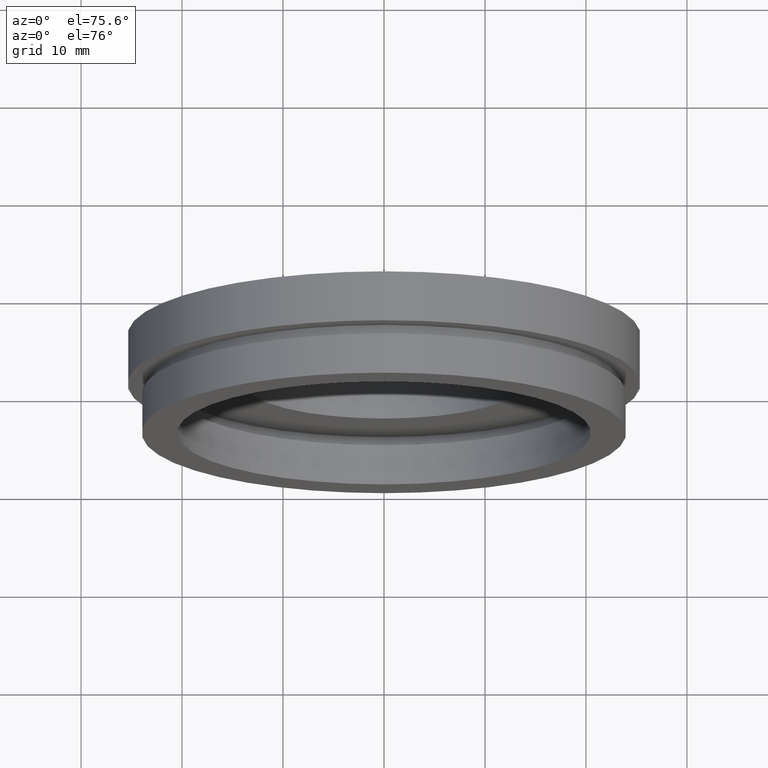
[diagram: clean part render]
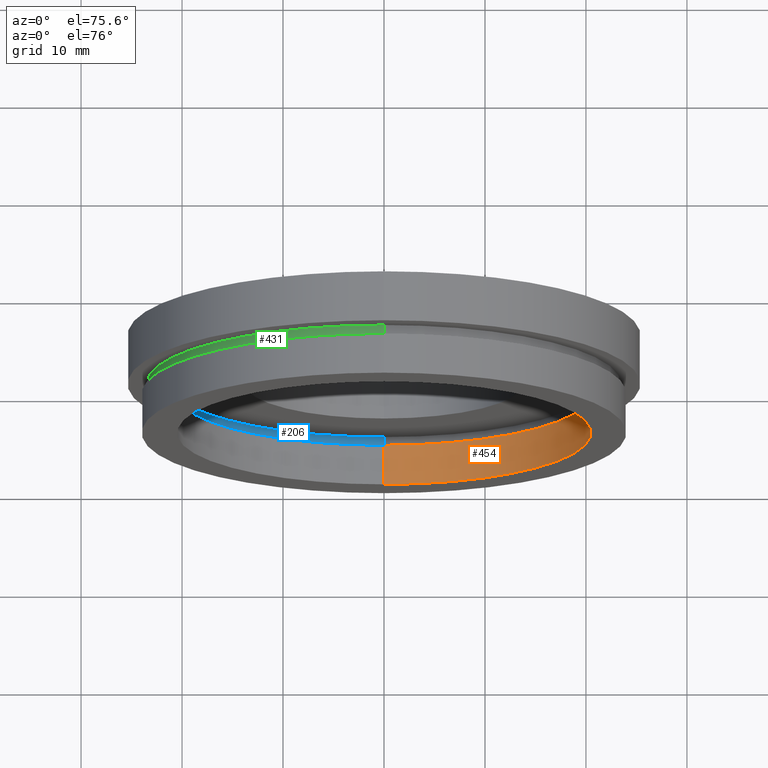
[diagram: same view with three faces highlighted in distinct colors, each labeled with its STEP entity id]
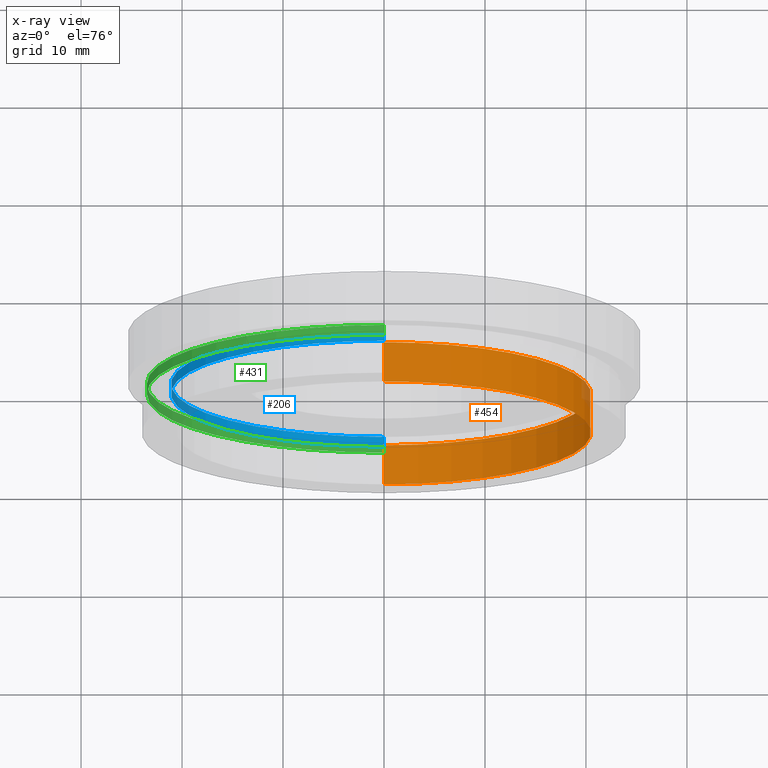
[diagram: x-ray of the same camera — body ghosted, the three highlighted faces saturated]
A machine part, auxiliary view with three faces highlighted in distinct colors.
The next image is the same camera in x-ray (body ghosted, the three faces saturated) — at least one of them is partly hidden behind the body in this view.
Their STEP definitions:

[orange] entity #454 — the highlighted cylindrical surface (partial cylindrical patch) has radius 20.5 mm, axis along (-0, 1, -0).
#9 = DIRECTION ( 'NONE',  ( -0.0000000000000000000, 1.000000000000000000, -0.0000000000000000000 ) ) ;
#10 = CARTESIAN_POINT ( 'NONE',  ( 2.510525938252074500E-015, 17.41929831819392000, -20.50000000000000400 ) ) ;
#16 = VERTEX_POINT ( 'NONE', #251 ) ;
#25 = VERTEX_POINT ( 'NONE', #339 ) ;
#51 = DIRECTION ( 'NONE',  ( -0.0000000000000000000, 1.000000000000000000, -0.0000000000000000000 ) ) ;
#68 = VERTEX_POINT ( 'NONE', #102 ) ;
#93 = CARTESIAN_POINT ( 'NONE',  ( 0.0000000000000000000, 17.41929831819392000, 0.0000000000000000000 ) ) ;
#102 = CARTESIAN_POINT ( 'NONE',  ( 2.510525938252074500E-015, 0.0000000000000000000, -20.50000000000000000 ) ) ;
#105 = ORIENTED_EDGE ( 'NONE', *, *, #451, .T. ) ;
#126 = ORIENTED_EDGE ( 'NONE', *, *, #146, .F. ) ;
#130 = DIRECTION ( 'NONE',  ( 0.0000000000000000000, 0.0000000000000000000, 1.000000000000000000 ) ) ;
#146 = EDGE_CURVE ( 'NONE', #16, #68, #553, .T. ) ;
#161 = FACE_OUTER_BOUND ( 'NONE', #287, .T. ) ;
#178 = CARTESIAN_POINT ( 'NONE',  ( 0.0000000000000000000, 0.0000000000000000000, 0.0000000000000000000 ) ) ;
#185 = ORIENTED_EDGE ( 'NONE', *, *, #383, .T. ) ;
#197 = DIRECTION ( 'NONE',  ( 0.0000000000000000000, 0.0000000000000000000, 1.000000000000000000 ) ) ;
#202 = DIRECTION ( 'NONE',  ( 0.0000000000000000000, 0.0000000000000000000, 1.000000000000000000 ) ) ;
#210 = AXIS2_PLACEMENT_3D ( 'NONE', #400, #528, #202 ) ;
#242 = CIRCLE ( 'NONE', #210, 20.50000000000000400 ) ;
#251 = CARTESIAN_POINT ( 'NONE',  ( 0.0000000000000000000, 0.0000000000000000000, 20.50000000000000000 ) ) ;
#255 = ORIENTED_EDGE ( 'NONE', *, *, #604, .F. ) ;
#287 = EDGE_LOOP ( 'NONE', ( #255, #126, #105, #185 ) ) ;
#302 = CYLINDRICAL_SURFACE ( 'NONE', #554, 20.50000000000000400 ) ;
#307 = LINE ( 'NONE', #10, #462 ) ;
#339 = CARTESIAN_POINT ( 'NONE',  ( 0.0000000000000000000, 4.000000000000000000, 20.50000000000000400 ) ) ;
#383 = EDGE_CURVE ( 'NONE', #25, #489, #242, .T. ) ;
#395 = AXIS2_PLACEMENT_3D ( 'NONE', #178, #475, #197 ) ;
#400 = CARTESIAN_POINT ( 'NONE',  ( 0.0000000000000000000, 4.000000000000000000, 0.0000000000000000000 ) ) ;
#409 = CARTESIAN_POINT ( 'NONE',  ( 0.0000000000000000000, 17.41929831819392000, 20.50000000000000400 ) ) ;
#451 = EDGE_CURVE ( 'NONE', #16, #25, #456, .T. ) ;
#454 = ADVANCED_FACE ( 'NONE', ( #161 ), #302, .F. ) ;
#456 = LINE ( 'NONE', #409, #609 ) ;
#462 = VECTOR ( 'NONE', #9, 1000.000000000000000 ) ;
#475 = DIRECTION ( 'NONE',  ( -0.0000000000000000000, 1.000000000000000000, -0.0000000000000000000 ) ) ;
#489 = VERTEX_POINT ( 'NONE', #603 ) ;
#509 = DIRECTION ( 'NONE',  ( -0.0000000000000000000, 1.000000000000000000, -0.0000000000000000000 ) ) ;
#528 = DIRECTION ( 'NONE',  ( -0.0000000000000000000, 1.000000000000000000, -0.0000000000000000000 ) ) ;
#553 = CIRCLE ( 'NONE', #395, 20.50000000000000000 ) ;
#554 = AXIS2_PLACEMENT_3D ( 'NONE', #93, #509, #130 ) ;
#603 = CARTESIAN_POINT ( 'NONE',  ( 2.510525938252074500E-015, 4.000000000000000000, -20.50000000000000400 ) ) ;
#604 = EDGE_CURVE ( 'NONE', #68, #489, #307, .T. ) ;
#609 = VECTOR ( 'NONE', #51, 1000.000000000000000 ) ;

[blue] entity #206 — the highlighted cylindrical surface (partial cylindrical patch) has radius 21.1 mm, axis along (-0, 1, -0).
#36 = DIRECTION ( 'NONE',  ( -0.0000000000000000000, 1.000000000000000000, -0.0000000000000000000 ) ) ;
#46 = DIRECTION ( 'NONE',  ( -0.0000000000000000000, 1.000000000000000000, -0.0000000000000000000 ) ) ;
#69 = DIRECTION ( 'NONE',  ( -0.0000000000000000000, 1.000000000000000000, -0.0000000000000000000 ) ) ;
#74 = VECTOR ( 'NONE', #137, 1000.000000000000000 ) ;
#98 = CIRCLE ( 'NONE', #564, 21.10000000000000100 ) ;
#113 = CYLINDRICAL_SURFACE ( 'NONE', #303, 21.10000000000000100 ) ;
#116 = CARTESIAN_POINT ( 'NONE',  ( 2.584004746200915400E-015, 5.000000000000000900, -21.10000000000000100 ) ) ;
#121 = CARTESIAN_POINT ( 'NONE',  ( 0.0000000000000000000, 17.41929831819392000, 0.0000000000000000000 ) ) ;
#136 = VERTEX_POINT ( 'NONE', #232 ) ;
#137 = DIRECTION ( 'NONE',  ( -0.0000000000000000000, 1.000000000000000000, -0.0000000000000000000 ) ) ;
#147 = CARTESIAN_POINT ( 'NONE',  ( 0.0000000000000000000, 5.000000000000000900, 21.10000000000000100 ) ) ;
#152 = AXIS2_PLACEMENT_3D ( 'NONE', #623, #46, #357 ) ;
#162 = ORIENTED_EDGE ( 'NONE', *, *, #299, .T. ) ;
#164 = ORIENTED_EDGE ( 'NONE', *, *, #276, .F. ) ;
#189 = VERTEX_POINT ( 'NONE', #116 ) ;
#206 = ADVANCED_FACE ( 'NONE', ( #308 ), #113, .F. ) ;
#211 = DIRECTION ( 'NONE',  ( -0.0000000000000000000, 1.000000000000000000, -0.0000000000000000000 ) ) ;
#232 = CARTESIAN_POINT ( 'NONE',  ( 0.0000000000000000000, 4.000000000000000000, 21.10000000000000100 ) ) ;
#250 = LINE ( 'NONE', #375, #74 ) ;
#276 = EDGE_CURVE ( 'NONE', #136, #397, #438, .T. ) ;
#299 = EDGE_CURVE ( 'NONE', #189, #397, #98, .T. ) ;
#301 = CIRCLE ( 'NONE', #152, 21.10000000000000100 ) ;
#303 = AXIS2_PLACEMENT_3D ( 'NONE', #121, #36, #332 ) ;
#308 = FACE_OUTER_BOUND ( 'NONE', #435, .T. ) ;
#326 = VERTEX_POINT ( 'NONE', #328 ) ;
#328 = CARTESIAN_POINT ( 'NONE',  ( 2.584004746200915400E-015, 4.000000000000000000, -21.10000000000000100 ) ) ;
#332 = DIRECTION ( 'NONE',  ( 0.0000000000000000000, 0.0000000000000000000, 1.000000000000000000 ) ) ;
#357 = DIRECTION ( 'NONE',  ( 0.0000000000000000000, 0.0000000000000000000, 1.000000000000000000 ) ) ;
#374 = EDGE_CURVE ( 'NONE', #326, #189, #250, .T. ) ;
#375 = CARTESIAN_POINT ( 'NONE',  ( 2.584004746200915400E-015, 17.41929831819392000, -21.10000000000000100 ) ) ;
#379 = ORIENTED_EDGE ( 'NONE', *, *, #374, .T. ) ;
#386 = ORIENTED_EDGE ( 'NONE', *, *, #622, .F. ) ;
#390 = CARTESIAN_POINT ( 'NONE',  ( 0.0000000000000000000, 17.41929831819392000, 21.10000000000000100 ) ) ;
#397 = VERTEX_POINT ( 'NONE', #147 ) ;
#435 = EDGE_LOOP ( 'NONE', ( #386, #379, #162, #164 ) ) ;
#438 = LINE ( 'NONE', #390, #538 ) ;
#521 = DIRECTION ( 'NONE',  ( 0.0000000000000000000, 0.0000000000000000000, 1.000000000000000000 ) ) ;
#538 = VECTOR ( 'NONE', #69, 1000.000000000000000 ) ;
#561 = CARTESIAN_POINT ( 'NONE',  ( 0.0000000000000000000, 5.000000000000000900, 0.0000000000000000000 ) ) ;
#564 = AXIS2_PLACEMENT_3D ( 'NONE', #561, #211, #521 ) ;
#622 = EDGE_CURVE ( 'NONE', #326, #136, #301, .T. ) ;
#623 = CARTESIAN_POINT ( 'NONE',  ( 0.0000000000000000000, 4.000000000000000000, 0.0000000000000000000 ) ) ;

[green] entity #431 — the highlighted cylindrical surface (partial cylindrical patch) has radius 23.5 mm, axis along (-0, 1, -0).
#18 = VERTEX_POINT ( 'NONE', #499 ) ;
#26 = ORIENTED_EDGE ( 'NONE', *, *, #216, .F. ) ;
#31 = VERTEX_POINT ( 'NONE', #531 ) ;
#32 = VERTEX_POINT ( 'NONE', #545 ) ;
#41 = VERTEX_POINT ( 'NONE', #405 ) ;
#44 = DIRECTION ( 'NONE',  ( -0.0000000000000000000, 1.000000000000000000, -0.0000000000000000000 ) ) ;
#60 = CARTESIAN_POINT ( 'NONE',  ( 0.0000000000000000000, 5.000000000000000900, 0.0000000000000000000 ) ) ;
#82 = ORIENTED_EDGE ( 'NONE', *, *, #510, .T. ) ;
#89 = LINE ( 'NONE', #298, #91 ) ;
#91 = VECTOR ( 'NONE', #44, 1000.000000000000000 ) ;
#132 = CYLINDRICAL_SURFACE ( 'NONE', #533, 23.50000000000000000 ) ;
#135 = VECTOR ( 'NONE', #330, 1000.000000000000000 ) ;
#138 = ORIENTED_EDGE ( 'NONE', *, *, #317, .T. ) ;
#150 = DIRECTION ( 'NONE',  ( -0.0000000000000000000, 1.000000000000000000, -0.0000000000000000000 ) ) ;
#198 = DIRECTION ( 'NONE',  ( 0.0000000000000000000, 0.0000000000000000000, 1.000000000000000000 ) ) ;
#214 = EDGE_LOOP ( 'NONE', ( #26, #82, #138, #589 ) ) ;
#216 = EDGE_CURVE ( 'NONE', #41, #32, #449, .T. ) ;
#222 = AXIS2_PLACEMENT_3D ( 'NONE', #60, #150, #363 ) ;
#230 = DIRECTION ( 'NONE',  ( -0.0000000000000000000, 1.000000000000000000, -0.0000000000000000000 ) ) ;
#234 = CIRCLE ( 'NONE', #345, 23.50000000000000000 ) ;
#254 = CIRCLE ( 'NONE', #222, 23.50000000000000000 ) ;
#298 = CARTESIAN_POINT ( 'NONE',  ( 0.0000000000000000000, 17.41929831819392000, 23.50000000000000000 ) ) ;
#317 = EDGE_CURVE ( 'NONE', #31, #18, #89, .T. ) ;
#330 = DIRECTION ( 'NONE',  ( -0.0000000000000000000, 1.000000000000000000, -0.0000000000000000000 ) ) ;
#341 = DIRECTION ( 'NONE',  ( -0.0000000000000000000, 1.000000000000000000, -0.0000000000000000000 ) ) ;
#345 = AXIS2_PLACEMENT_3D ( 'NONE', #472, #341, #198 ) ;
#363 = DIRECTION ( 'NONE',  ( 0.0000000000000000000, 0.0000000000000000000, 1.000000000000000000 ) ) ;
#405 = CARTESIAN_POINT ( 'NONE',  ( 2.877919977996280300E-015, 4.000000000000000000, -23.50000000000000000 ) ) ;
#431 = ADVANCED_FACE ( 'NONE', ( #552 ), #132, .T. ) ;
#449 = LINE ( 'NONE', #470, #135 ) ;
#470 = CARTESIAN_POINT ( 'NONE',  ( 2.877919977996280300E-015, 17.41929831819392000, -23.50000000000000000 ) ) ;
#472 = CARTESIAN_POINT ( 'NONE',  ( 0.0000000000000000000, 4.000000000000000000, 0.0000000000000000000 ) ) ;
#491 = EDGE_CURVE ( 'NONE', #32, #18, #254, .T. ) ;
#499 = CARTESIAN_POINT ( 'NONE',  ( 0.0000000000000000000, 5.000000000000000900, 23.50000000000000000 ) ) ;
#510 = EDGE_CURVE ( 'NONE', #41, #31, #234, .T. ) ;
#530 = DIRECTION ( 'NONE',  ( 0.0000000000000000000, 0.0000000000000000000, 1.000000000000000000 ) ) ;
#531 = CARTESIAN_POINT ( 'NONE',  ( 0.0000000000000000000, 4.000000000000000000, 23.50000000000000000 ) ) ;
#533 = AXIS2_PLACEMENT_3D ( 'NONE', #575, #230, #530 ) ;
#545 = CARTESIAN_POINT ( 'NONE',  ( 2.877919977996280300E-015, 5.000000000000000900, -23.50000000000000000 ) ) ;
#552 = FACE_OUTER_BOUND ( 'NONE', #214, .T. ) ;
#575 = CARTESIAN_POINT ( 'NONE',  ( 0.0000000000000000000, 17.41929831819392000, 0.0000000000000000000 ) ) ;
#589 = ORIENTED_EDGE ( 'NONE', *, *, #491, .F. ) ;